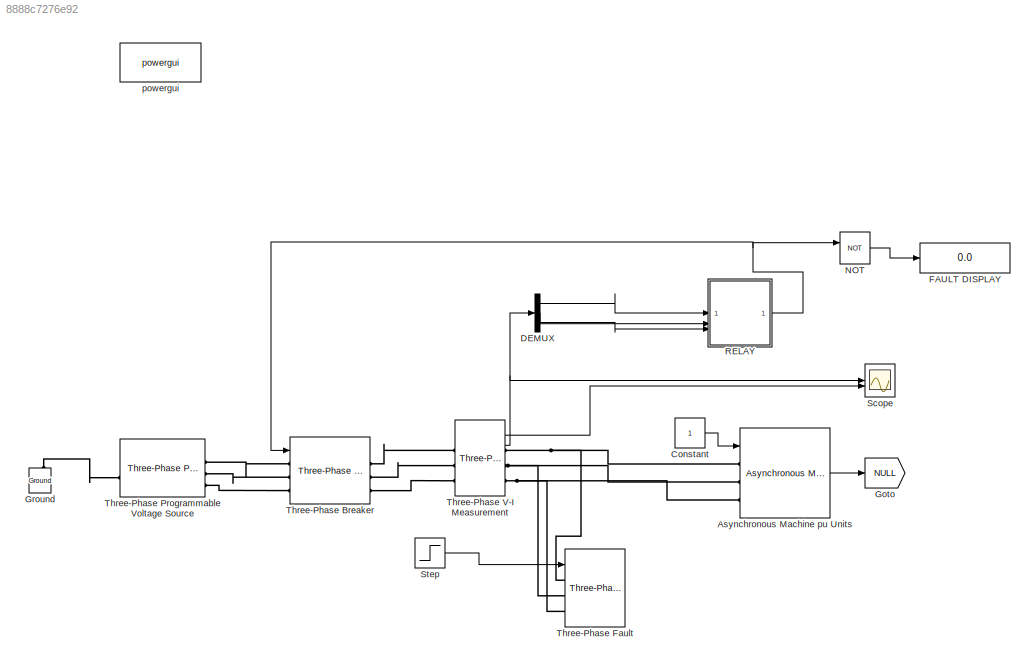
MODEL slx_8888c7276e92
KIND model
CONFIG AbsTol = auto
CONFIG EnableMultiTasking = off
CONFIG FixedStep = auto
CONFIG MaxStep = auto
CONFIG MinStep = auto
CONFIG RelTol = 1e-3
CONFIG SampleTimeConstraint = Unconstrained
CONFIG SolverName = VariableStepAuto
CONFIG StartTime = 0.0
CONFIG StopTime = 0.5
BLOCK [Reference] Asynchronous Machine pu Units  REF=spsAsynchronousMachinepuUnitsLib/Asynchronous Machine
pu Units
  LibrarySourceBlock = sps_lib/Electrical Machines/Asynchronous Machine\npu Units
  SourceBlock = spsAsynchronousMachinepuUnitsLib/Asynchronous Machine\npu Units
  SourceType = Asynchronous Machine
BLOCK [Constant] Constant
BLOCK [Demux] DEMUX
  Outputs = 3
BLOCK [Display] FAULT DISPLAY
  Decimation = 1
BLOCK [Goto] Goto
  GotoTag = NULL
BLOCK [Reference] Ground  REF=spsGroundLib/Ground
  LibrarySourceBlock = sps_lib/Utilities/Ground
  NameLocation = right
  SourceBlock = spsGroundLib/Ground
  SourceType = Ground
BLOCK [Logic] NOT
  AllPortsSameDT = off
  IconShape = distinctive
  Operator = NOT
  OutDataTypeStr = boolean
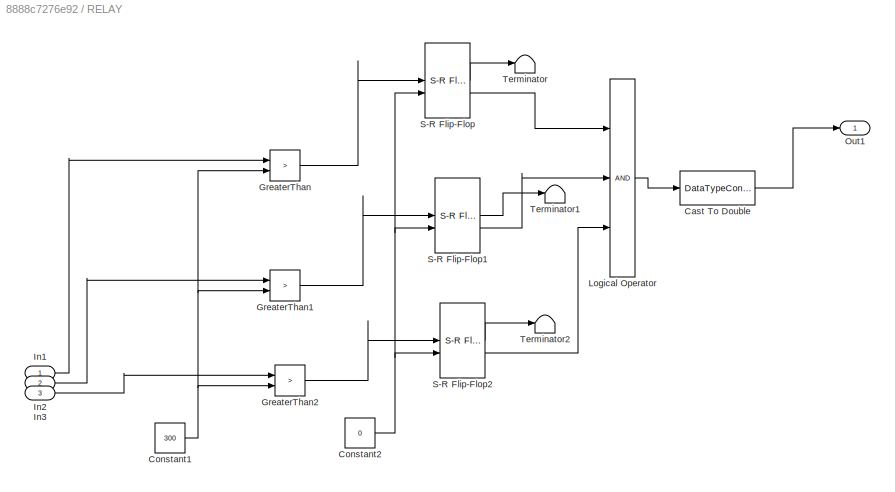
BLOCK [SubSystem] RELAY
BLOCK [DataTypeConversion] RELAY/Cast To Double
  OutDataTypeStr = double
  RndMeth = Floor
  SaturateOnIntegerOverflow = off
BLOCK [Constant] RELAY/Constant1
  Value = 300
BLOCK [Constant] RELAY/Constant2
  OutDataTypeStr = boolean
  Value = 0
BLOCK [RelationalOperator] RELAY/GreaterThan
  InputSameDT = off
  Operator = >
  OutDataTypeStr = boolean
  RndMeth = Simplest
BLOCK [RelationalOperator] RELAY/GreaterThan1
  InputSameDT = off
  Operator = >
  OutDataTypeStr = boolean
  RndMeth = Simplest
BLOCK [RelationalOperator] RELAY/GreaterThan2
  InputSameDT = off
  Operator = >
  OutDataTypeStr = boolean
  RndMeth = Simplest
BLOCK [Inport] RELAY/In1
BLOCK [Inport] RELAY/In2
  Port = 2
BLOCK [Inport] RELAY/In3
  Port = 3
BLOCK [Logic] RELAY/Logical Operator
  AllPortsSameDT = off
  Inputs = 3
  OutDataTypeStr = boolean
BLOCK [Outport] RELAY/Out1
BLOCK [Reference] RELAY/S-R Flip-Flop  REF=simulink_extras/Flip Flops/S-R
Flip-Flop
  SourceBlock = simulink_extras/Flip Flops/S-R\nFlip-Flop
  SourceType = SRFlipFlop
BLOCK [Reference] RELAY/S-R Flip-Flop1  REF=simulink_extras/Flip Flops/S-R
Flip-Flop
  SourceBlock = simulink_extras/Flip Flops/S-R\nFlip-Flop
  SourceType = SRFlipFlop
BLOCK [Reference] RELAY/S-R Flip-Flop2  REF=simulink_extras/Flip Flops/S-R
Flip-Flop
  SourceBlock = simulink_extras/Flip Flops/S-R\nFlip-Flop
  SourceType = SRFlipFlop
BLOCK [Terminator] RELAY/Terminator
BLOCK [Terminator] RELAY/Terminator1
BLOCK [Terminator] RELAY/Terminator2
BLOCK [Scope] Scope
  Floating = off
  NumInputPorts = 2
  ScopeSpecificationString = Simulink.scopes.TimeScopeBlockCfg('CurrentConfiguration', extmgr.ConfigurationSet(extmgr.Configuration('Core','General UI',true),extmgr.Configuration('Core','Source UI',true),extmgr.Configuration('Sources','WiredSimulink',true),extmgr.Configuration('Visuals','Time Domain',true,'SerializedDisplays',{struct('MinYLimReal','-28.59683','MaxYLimReal','28.84442','YLabelReal','','MinYLimMag','0.00000','Ma...<+2251ch>
BLOCK [Step] Step
  SampleTime = 0
BLOCK [Reference] Three-Phase Breaker  REF=spsThreePhaseBreakerLib/Three-Phase Breaker
  LibrarySourceBlock = sps_lib/Power Grid Elements/Three-Phase Breaker
  SourceBlock = spsThreePhaseBreakerLib/Three-Phase Breaker
  SourceType = Three-Phase Breaker
BLOCK [Reference] Three-Phase Fault  REF=spsThreePhaseFaultLib/Three-Phase Fault
  LibrarySourceBlock = sps_lib/Power Grid Elements/Three-Phase Fault
  SourceBlock = spsThreePhaseFaultLib/Three-Phase Fault
  SourceType = Three-Phase Fault
BLOCK [Reference] Three-Phase Programmable Voltage Source  REF=spsThreePhaseProgrammableVoltageSourceLib/Three-Phase
Programmable
Voltage Source
  LibrarySourceBlock = sps_lib/Sources/Three-Phase\nProgrammable\nVoltage Source
  SourceBlock = spsThreePhaseProgrammableVoltageSourceLib/Three-Phase\nProgrammable\nVoltage Source
  SourceType = Three-Phase Programmable Voltage Source
BLOCK [Reference] Three-Phase V-I Measurement  REF=spsThreePhaseVIMeasurementLib/Three-Phase
V-I Measurement
  LibrarySourceBlock = sps_lib/Sensors and Measurements/Three-Phase\nV-I Measurement
  SourceBlock = spsThreePhaseVIMeasurementLib/Three-Phase\nV-I Measurement
  SourceType = Three-Phase VI Measurement
BLOCK [Reference] powergui  REF=sps_lib/powergui
  Priority = 1
  SourceBlock = sps_lib/powergui
  SourceType = PSB option menu block
LINE Asynchronous Machine pu Units:1 -> Goto:1
LINE Constant:1 -> Asynchronous Machine pu Units:1
LINE DEMUX:1 -> RELAY:1
LINE DEMUX:2 -> RELAY:2
LINE DEMUX:3 -> RELAY:3
LINE NOT:1 -> FAULT DISPLAY:1
LINE RELAY/Cast To Double:1 -> RELAY/Out1:1
NET RELAY/Constant1:1 -> RELAY/GreaterThan1:2, RELAY/GreaterThan2:2, RELAY/GreaterThan:2
NET RELAY/Constant2:1 -> RELAY/S-R Flip-Flop1:2, RELAY/S-R Flip-Flop2:2, RELAY/S-R Flip-Flop:2
LINE RELAY/GreaterThan1:1 -> RELAY/S-R Flip-Flop1:1
LINE RELAY/GreaterThan2:1 -> RELAY/S-R Flip-Flop2:1
LINE RELAY/GreaterThan:1 -> RELAY/S-R Flip-Flop:1
LINE RELAY/In1:1 -> RELAY/GreaterThan:1
LINE RELAY/In2:1 -> RELAY/GreaterThan1:1
LINE RELAY/In3:1 -> RELAY/GreaterThan2:1
LINE RELAY/Logical Operator:1 -> RELAY/Cast To Double:1
LINE RELAY/S-R Flip-Flop1:1 -> RELAY/Terminator1:1
LINE RELAY/S-R Flip-Flop1:2 -> RELAY/Logical Operator:2
LINE RELAY/S-R Flip-Flop2:1 -> RELAY/Terminator2:1
LINE RELAY/S-R Flip-Flop2:2 -> RELAY/Logical Operator:3
LINE RELAY/S-R Flip-Flop:1 -> RELAY/Terminator:1
LINE RELAY/S-R Flip-Flop:2 -> RELAY/Logical Operator:1
NET RELAY:1 -> NOT:1, Three-Phase Breaker:1
LINE Step:1 -> Three-Phase Fault:1
LINE Three-Phase V-I Measurement:1 -> Scope:2
NET Three-Phase V-I Measurement:2 -> DEMUX:1, Scope:1
PNET net1: Asynchronous Machine pu Units:LConn1 -- Three-Phase Fault:LConn1 -- Three-Phase V-I Measurement:RConn1
PNET net2: Asynchronous Machine pu Units:LConn2 -- Three-Phase Fault:LConn2 -- Three-Phase V-I Measurement:RConn2
PNET net3: Asynchronous Machine pu Units:LConn3 -- Three-Phase Fault:LConn3 -- Three-Phase V-I Measurement:RConn3
PLINE Ground:LConn1 -- Three-Phase Programmable Voltage Source:LConn1
PLINE Three-Phase Breaker:LConn1 -- Three-Phase Programmable Voltage Source:RConn1
PLINE Three-Phase Breaker:LConn2 -- Three-Phase Programmable Voltage Source:RConn2
PLINE Three-Phase Breaker:LConn3 -- Three-Phase Programmable Voltage Source:RConn3
PLINE Three-Phase Breaker:RConn1 -- Three-Phase V-I Measurement:LConn1
PLINE Three-Phase Breaker:RConn2 -- Three-Phase V-I Measurement:LConn2
PLINE Three-Phase Breaker:RConn3 -- Three-Phase V-I Measurement:LConn3
note: NET lines group one-source signal fan-out (src -> all destinations, sorted); 1:1 wires keep LINE; PNET lines group multi-terminal physical nets as a canonical sorted terminal list (undirected conserving connections); 2-terminal nets keep the pairwise PLINE form
